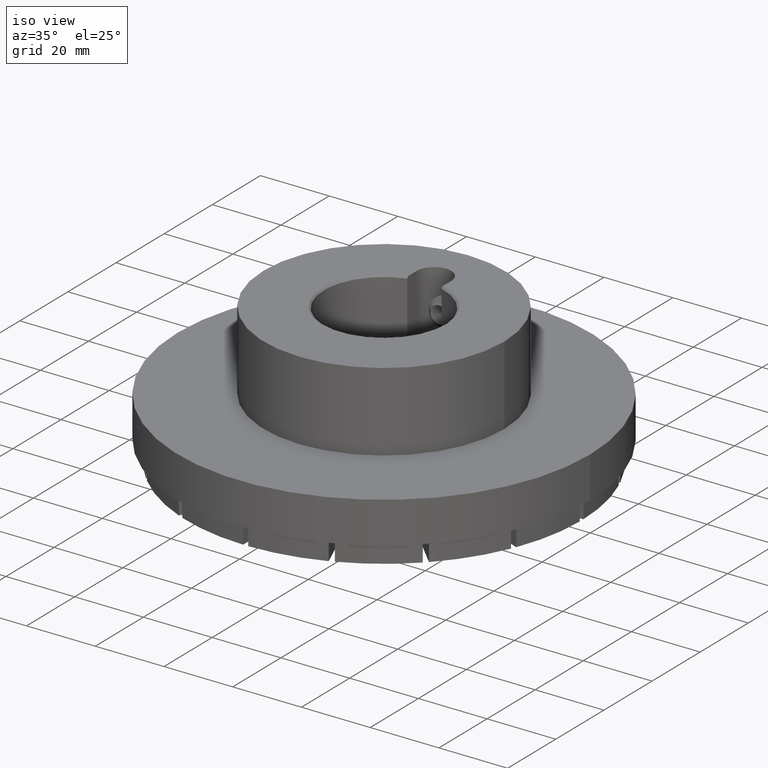
[diagram: clean part render]
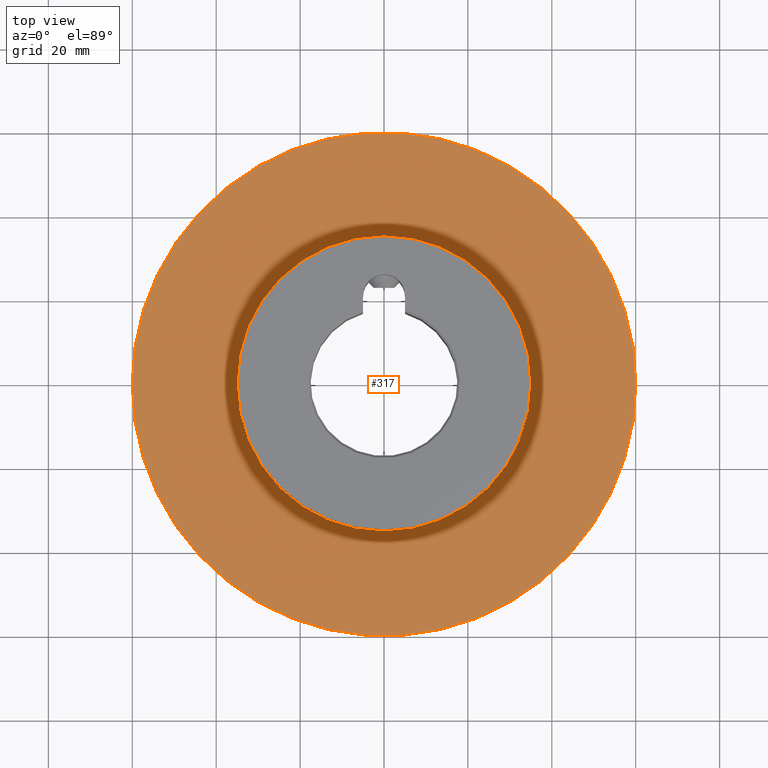
[diagram: tour spotlight — one face highlighted and labeled with its STEP entity id]
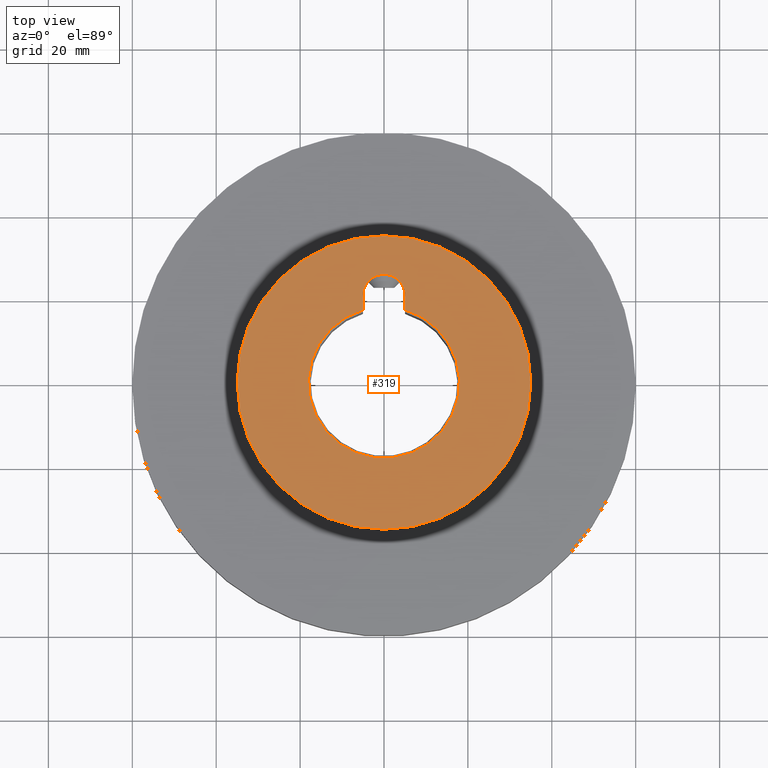
[diagram: tour spotlight — one face highlighted and labeled with its STEP entity id]
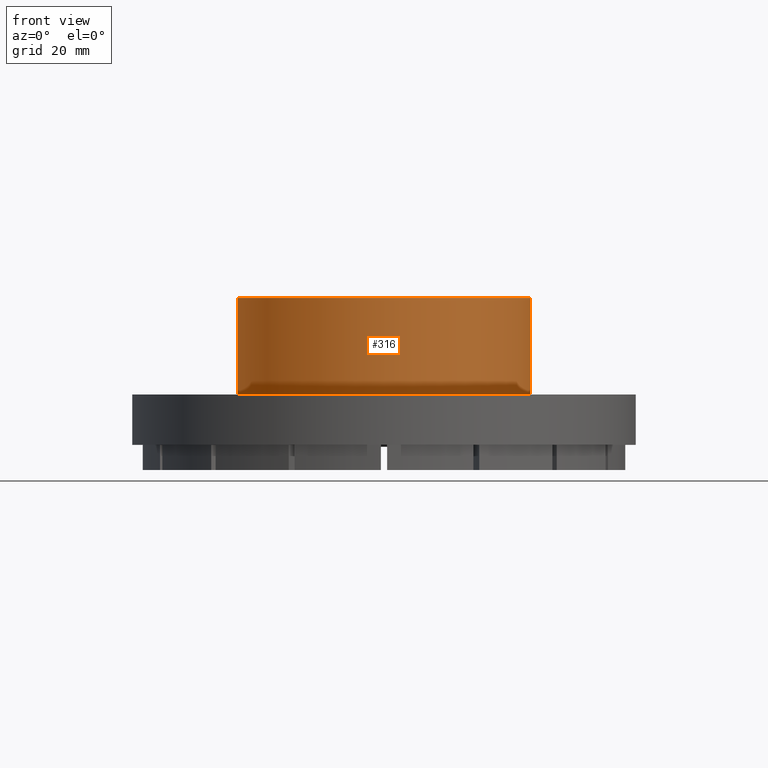
[diagram: tour spotlight — one face highlighted and labeled with its STEP entity id]
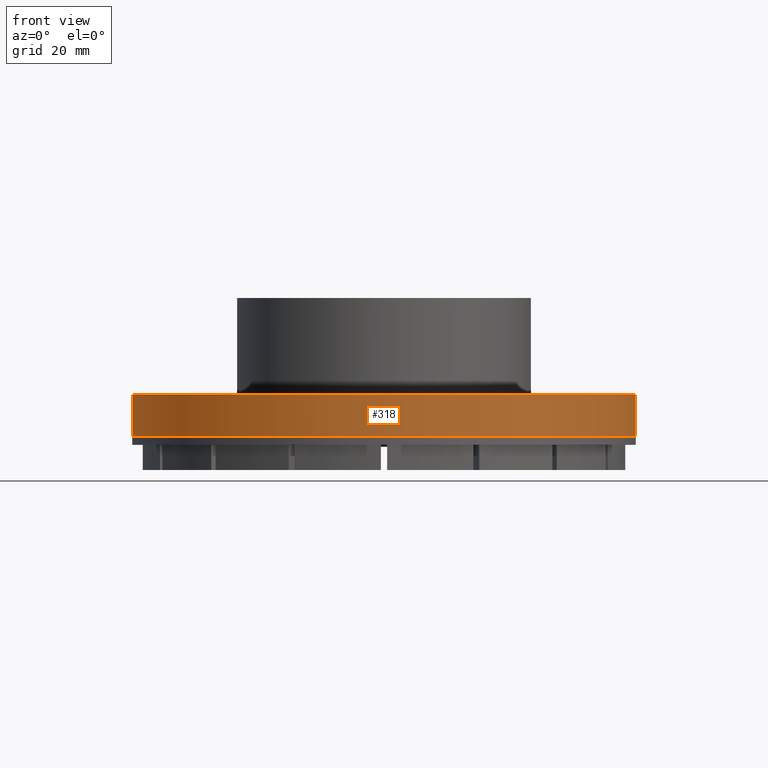
[diagram: tour spotlight — one face highlighted and labeled with its STEP entity id]
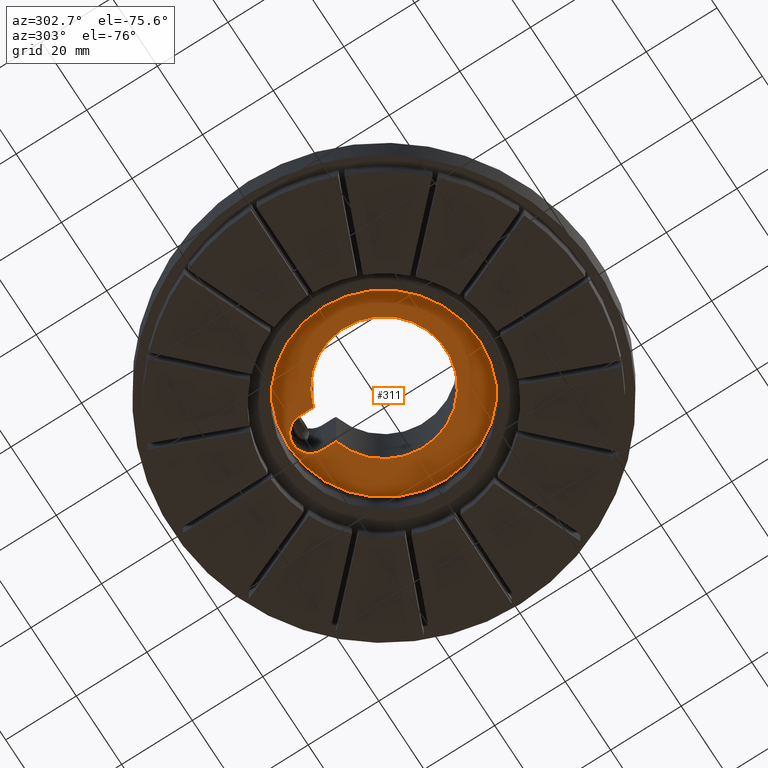
[diagram: tour spotlight — one face highlighted and labeled with its STEP entity id]
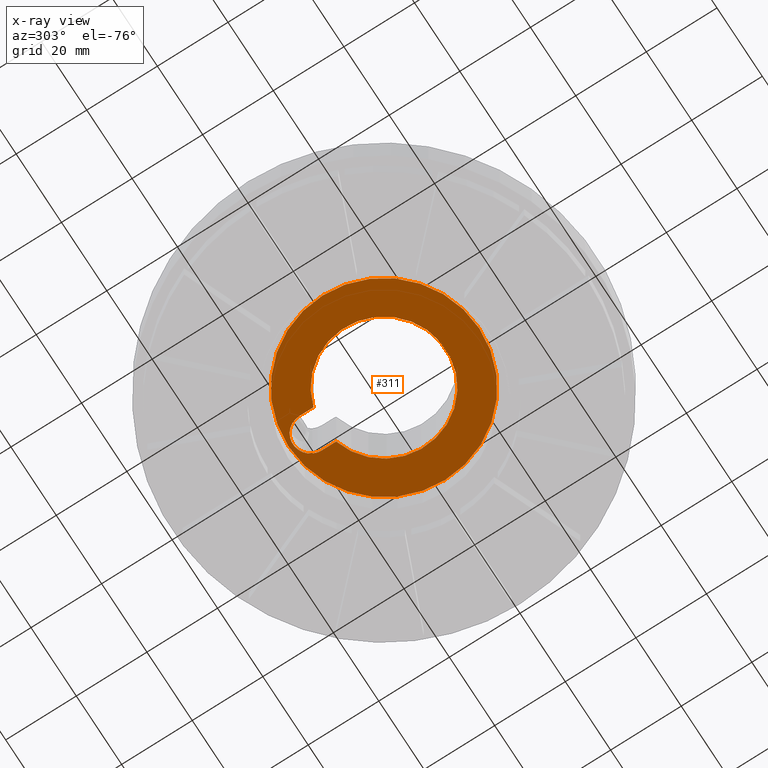
[diagram: x-ray of the same camera — body ghosted, this tour face saturated]
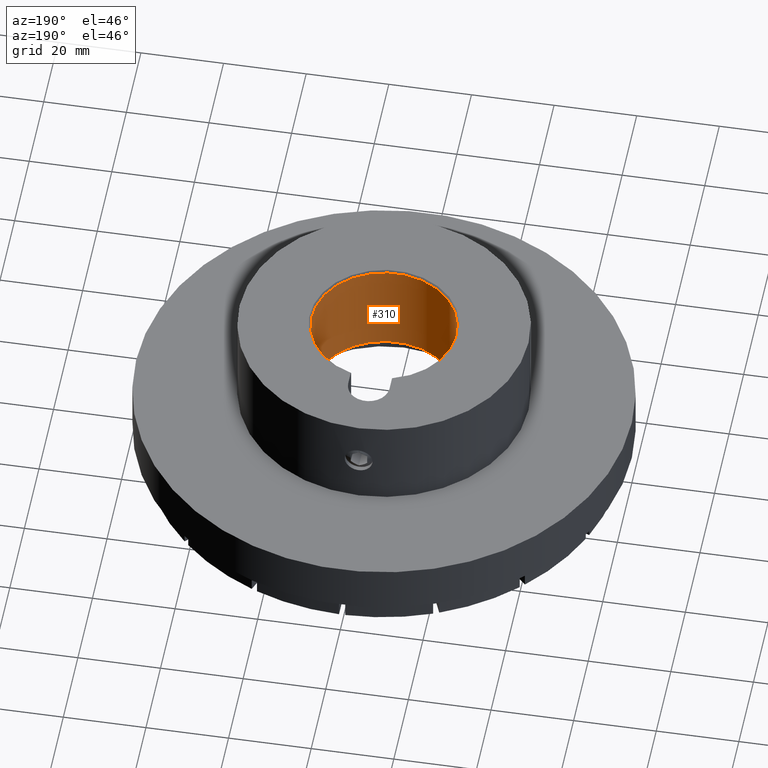
[diagram: tour spotlight — one face highlighted and labeled with its STEP entity id]
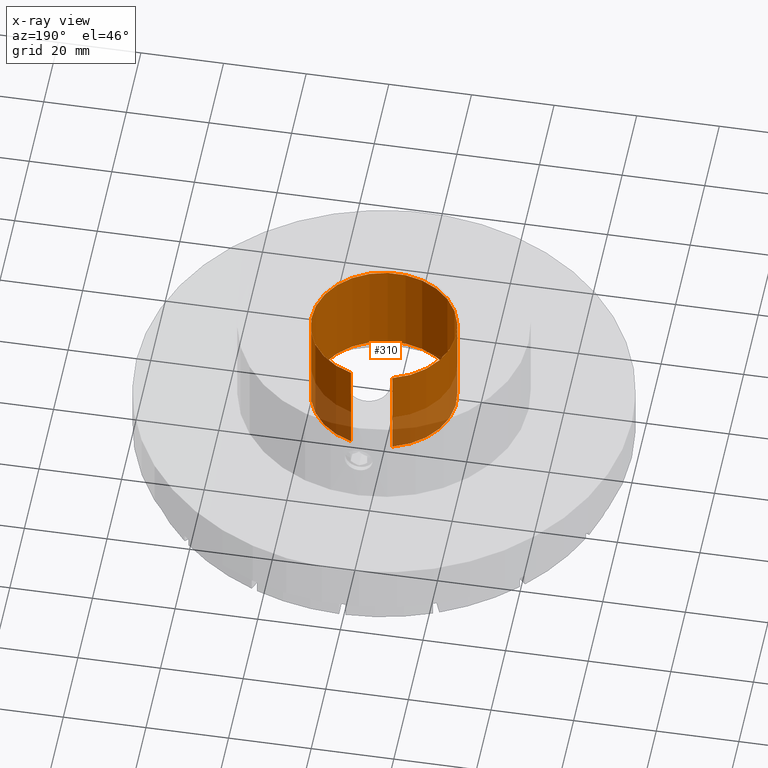
[diagram: x-ray of the same camera — body ghosted, this tour face saturated]
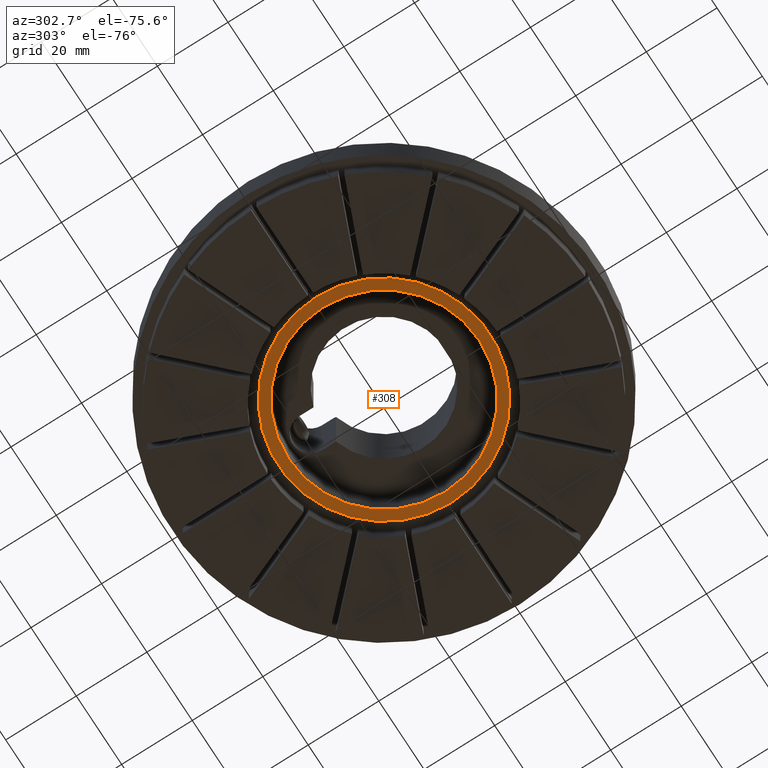
[diagram: tour spotlight — one face highlighted and labeled with its STEP entity id]
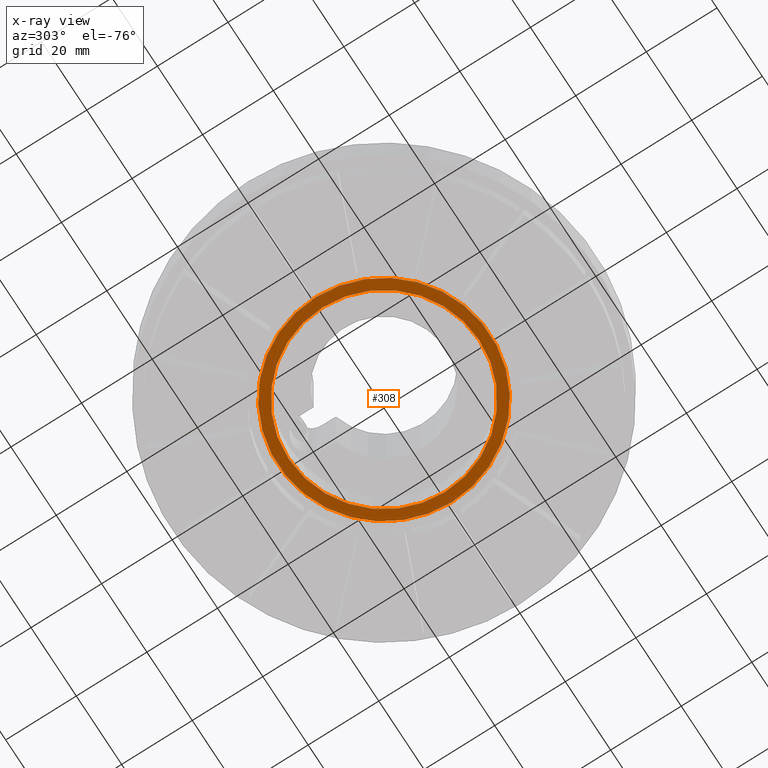
[diagram: x-ray of the same camera — body ghosted, this tour face saturated]
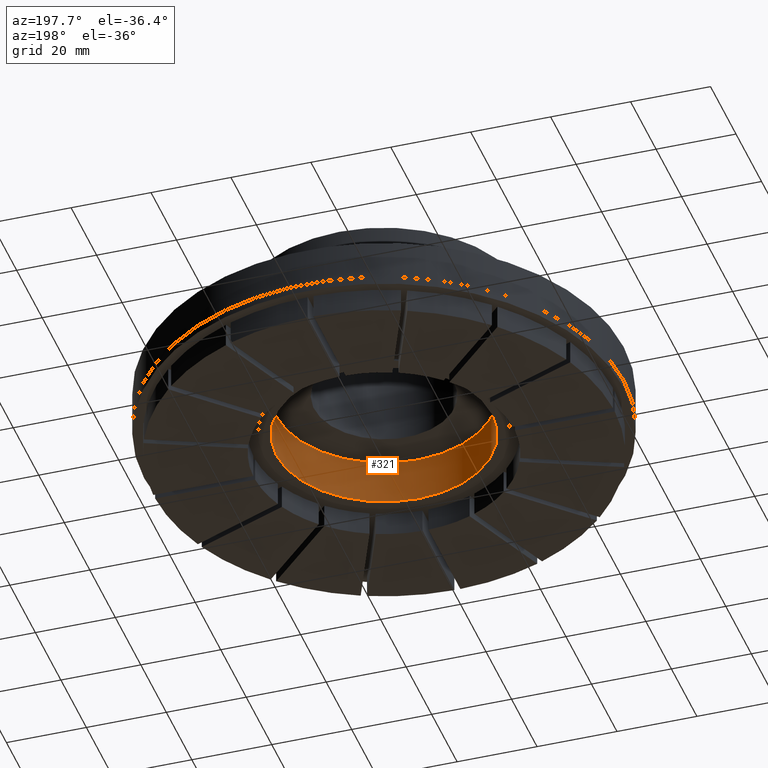
[diagram: tour spotlight — one face highlighted and labeled with its STEP entity id]
A machine part: a face-by-face anatomy tour. The part has 207 B-rep faces; the first image is the clean iso view, then the 8 largest visible faces are spotlighted one at a time (largest first), each with its STEP entity span.

Face 1 — top view, entity #317. In plain terms, the highlighted planar face has unit normal (0, 0, 1).
Definition (entity closure, byte-faithful):
#317 = ADVANCED_FACE( '', ( #485, #486 ), #487, .T. );
#485 = FACE_OUTER_BOUND( '', #737, .T. );
#486 = FACE_BOUND( '', #738, .T. );
#487 = PLANE( '', #739 );
#737 = EDGE_LOOP( '', ( #1023 ) );
#738 = EDGE_LOOP( '', ( #1024 ) );
#739 = AXIS2_PLACEMENT_3D( '', #1025, #1026, #1027 );
#1023 = ORIENTED_EDGE( '', *, *, #1795, .T. );
#1024 = ORIENTED_EDGE( '', *, *, #1794, .F. );
#1025 = CARTESIAN_POINT( '', ( 0.000000000000000, 0.000000000000000, 18.0000000000000 ) );
#1026 = DIRECTION( '', ( 0.000000000000000, 0.000000000000000, 1.00000000000000 ) );
#1027 = DIRECTION( '', ( 1.00000000000000, 0.000000000000000, 0.000000000000000 ) );
#1794 = EDGE_CURVE( '', #2066, #2066, #2067, .T. );
#1795 = EDGE_CURVE( '', #2068, #2068, #2069, .T. );
#2066 = VERTEX_POINT( '', #2638 );
#2067 = CIRCLE( '', #2639, 35.0000000000000 );
#2068 = VERTEX_POINT( '', #2640 );
#2069 = CIRCLE( '', #2641, 60.0000000000000 );
#2638 = CARTESIAN_POINT( '', ( 35.0000000000000, 0.000000000000000, 18.0000000000000 ) );
#2639 = AXIS2_PLACEMENT_3D( '', #3257, #3258, #3259 );
#2640 = CARTESIAN_POINT( '', ( 60.0000000000000, 0.000000000000000, 18.0000000000000 ) );
#2641 = AXIS2_PLACEMENT_3D( '', #3260, #3261, #3262 );
#3257 = CARTESIAN_POINT( '', ( 0.000000000000000, 0.000000000000000, 18.0000000000000 ) );
#3258 = DIRECTION( '', ( 0.000000000000000, 0.000000000000000, 1.00000000000000 ) );
#3259 = DIRECTION( '', ( 1.00000000000000, 0.000000000000000, 0.000000000000000 ) );
#3260 = CARTESIAN_POINT( '', ( 0.000000000000000, 0.000000000000000, 18.0000000000000 ) );
#3261 = DIRECTION( '', ( 0.000000000000000, 0.000000000000000, 1.00000000000000 ) );
#3262 = DIRECTION( '', ( 1.00000000000000, 0.000000000000000, 0.000000000000000 ) );

Face 2 — top view, entity #319. In plain terms, the highlighted planar face has unit normal (0, 0, 1).
Definition (entity closure, byte-faithful):
#319 = ADVANCED_FACE( '', ( #491, #492 ), #493, .T. );
#491 = FACE_OUTER_BOUND( '', #743, .T. );
#492 = FACE_BOUND( '', #744, .T. );
#493 = PLANE( '', #745 );
#743 = EDGE_LOOP( '', ( #1033 ) );
#744 = EDGE_LOOP( '', ( #1034, #1035, #1036, #1037 ) );
#745 = AXIS2_PLACEMENT_3D( '', #1038, #1039, #1040 );
#1033 = ORIENTED_EDGE( '', *, *, #1793, .F. );
#1034 = ORIENTED_EDGE( '', *, *, #1786, .T. );
#1035 = ORIENTED_EDGE( '', *, *, #1778, .T. );
#1036 = ORIENTED_EDGE( '', *, *, #1797, .T. );
#1037 = ORIENTED_EDGE( '', *, *, #1789, .T. );
#1038 = CARTESIAN_POINT( '', ( 0.000000000000000, 0.000000000000000, 41.0000000000000 ) );
#1039 = DIRECTION( '', ( 0.000000000000000, 0.000000000000000, 1.00000000000000 ) );
#1040 = DIRECTION( '', ( 1.00000000000000, 0.000000000000000, 0.000000000000000 ) );
#1778 = EDGE_CURVE( '', #2033, #2037, #2039, .F. );
#1786 = EDGE_CURVE( '', #2052, #2033, #2053, .F. );
#1789 = EDGE_CURVE( '', #2057, #2052, #2058, .T. );
#1793 = EDGE_CURVE( '', #2064, #2064, #2065, .F. );
#1797 = EDGE_CURVE( '', #2037, #2057, #2072, .T. );
#2033 = VERTEX_POINT( '', #2462 );
#2037 = VERTEX_POINT( '', #2469 );
#2039 = CIRCLE( '', #2474, 18.0000000000000 );
#2052 = VERTEX_POINT( '', #2491 );
#2053 = LINE( '', #2492, #2493 );
#2057 = VERTEX_POINT( '', #2563 );
#2058 = CIRCLE( '', #2564, 5.00000000000000 );
#2064 = VERTEX_POINT( '', #2636 );
#2065 = CIRCLE( '', #2637, 35.0000000000000 );
#2072 = LINE( '', #2644, #2645 );
#2462 = CARTESIAN_POINT( '', ( 5.00000000000000, 17.2916164657906, 41.0000000000000 ) );
#2469 = CARTESIAN_POINT( '', ( -5.00000000000000, 17.2916164657906, 41.0000000000000 ) );
#2474 = AXIS2_PLACEMENT_3D( '', #3229, #3230, #3231 );
#2491 = CARTESIAN_POINT( '', ( 5.00000000000000, 20.8000000000000, 41.0000000000000 ) );
#2492 = CARTESIAN_POINT( '', ( 5.00000000000000, 0.000000000000000, 41.0000000000000 ) );
#2493 = VECTOR( '', #3245, 1000.00000000000 );
#2563 = CARTESIAN_POINT( '', ( -5.00000000000000, 20.8000000000000, 41.0000000000000 ) );
#2564 = AXIS2_PLACEMENT_3D( '', #3247, #3248, #3249 );
#2636 = CARTESIAN_POINT( '', ( 35.0000000000000, 0.000000000000000, 41.0000000000000 ) );
#2637 = AXIS2_PLACEMENT_3D( '', #3254, #3255, #3256 );
#2644 = CARTESIAN_POINT( '', ( -5.00000000000000, 0.000000000000000, 41.0000000000000 ) );
#2645 = VECTOR( '', #3266, 1000.00000000000 );
#3229 = CARTESIAN_POINT( '', ( 0.000000000000000, 0.000000000000000, 41.0000000000000 ) );
#3230 = DIRECTION( '', ( 0.000000000000000, 0.000000000000000, 1.00000000000000 ) );
#3231 = DIRECTION( '', ( 1.00000000000000, 0.000000000000000, -0.000000000000000 ) );
#3245 = DIRECTION( '', ( 0.000000000000000, 1.00000000000000, 0.000000000000000 ) );
#3247 = CARTESIAN_POINT( '', ( 8.67361737988404E-016, 20.8000000000000, 41.0000000000000 ) );
#3248 = DIRECTION( '', ( -0.000000000000000, 0.000000000000000, -1.00000000000000 ) );
#3249 = DIRECTION( '', ( -1.00000000000000, 0.000000000000000, 0.000000000000000 ) );
#3254 = CARTESIAN_POINT( '', ( 0.000000000000000, 0.000000000000000, 41.0000000000000 ) );
#3255 = DIRECTION( '', ( 0.000000000000000, 0.000000000000000, 1.00000000000000 ) );
#3256 = DIRECTION( '', ( 1.00000000000000, 0.000000000000000, -0.000000000000000 ) );
#3266 = DIRECTION( '', ( 0.000000000000000, 1.00000000000000, 0.000000000000000 ) );

Face 3 — front view, entity #316. In plain terms, the highlighted cylindrical surface (bore or boss wall) has radius 35 mm, axis along (0, -0, 1).
Definition (entity closure, byte-faithful):
#316 = ADVANCED_FACE( '', ( #481, #482, #483 ), #484, .T. );
#481 = FACE_BOUND( '', #733, .T. );
#482 = FACE_OUTER_BOUND( '', #734, .T. );
#483 = FACE_OUTER_BOUND( '', #735, .T. );
#484 = CYLINDRICAL_SURFACE( '', #736, 35.0000000000000 );
#733 = EDGE_LOOP( '', ( #1017 ) );
#734 = EDGE_LOOP( '', ( #1018 ) );
#735 = EDGE_LOOP( '', ( #1019 ) );
#736 = AXIS2_PLACEMENT_3D( '', #1020, #1021, #1022 );
#1017 = ORIENTED_EDGE( '', *, *, #1791, .T. );
#1018 = ORIENTED_EDGE( '', *, *, #1793, .T. );
#1019 = ORIENTED_EDGE( '', *, *, #1794, .T. );
#1020 = CARTESIAN_POINT( '', ( 0.000000000000000, 0.000000000000000, 63.9999999998799 ) );
#1021 = DIRECTION( '', ( 0.000000000000000, -0.000000000000000, 1.00000000000000 ) );
#1022 = DIRECTION( '', ( -1.00000000000000, 0.000000000000000, 0.000000000000000 ) );
#1791 = EDGE_CURVE( '', #2060, #2060, #2061, .T. );
#1793 = EDGE_CURVE( '', #2064, #2064, #2065, .F. );
#1794 = EDGE_CURVE( '', #2066, #2066, #2067, .T. );
#2060 = VERTEX_POINT( '', #2567 );
#2061 = B_SPLINE_CURVE_WITH_KNOTS( '', 3, ( #2568, #2569, #2570, #2571, #2572, #2573, #2574, #2575, #2576, #2577, #2578, #2579, #2580, #2581, #2582, #2583, #2584, #2585, #2586, #2587, #2588, #2589, #2590, #2591, #2592, #2593, #2594, #2595, #2596, #2597, #2598, #2599, #2600, #2601, #2602, #2603, #2604, #2605, #2606, #2607, #2608, #2609, #2610, #2611, #2612, #2613, #2614, #2615, #2616, #2617, #2618, #2619, #2620, #2621, #2622, #2623, #2624, #2625, #2626, #2627, #2628, #2629, #2630, #2631, #2632, #2633 ), .UNSPECIFIED., .T., .F., ( 2, 2, 2, 2, 2, 2, 2, 2, 2, 2, 2, 2, 2, 2, 2, 2, 2, 2, 2, 2, 2, 2, 2, 2, 2, 2, 2, 2, 2, 2, 2, 2, 2, 2, 2 ), ( -0.000659792616552269, 0.000000000000000, 0.000659792616552259, 0.00131958523310452, 0.00197937784965678, 0.00263917046620904, 0.00329896308276130, 0.00395875569931356, 0.00461854831586581, 0.00527834093241807, 0.00593813354897033, 0.00659792616552259, 0.00725771878207485, 0.00791751139862711, 0.00857730401517936, 0.00923709663173162, 0.00989688924828388, 0.0105566818648361, 0.0112164744813884, 0.0118762670979407, 0.0125360597144929, 0.0131958523310452, 0.0138556449475974, 0.0145154375641497, 0.0151752301807020, 0.0158350227972542, 0.0164948154138065, 0.0171546080303587, 0.0178144006469110, 0.0184741932634632, 0.0191339858800155, 0.0197937784965678, 0.0204535711131200, 0.0211133637296723, 0.0217731563462246 ), .UNSPECIFIED. );
#2064 = VERTEX_POINT( '', #2636 );
#2065 = CIRCLE( '', #2637, 35.0000000000000 );
#2066 = VERTEX_POINT( '', #2638 );
#2067 = CIRCLE( '', #2639, 35.0000000000000 );
#2567 = CARTESIAN_POINT( '', ( -3.37499999999999, 34.8368967475578, 30.0000000000000 ) );
#2568 = CARTESIAN_POINT( '', ( -3.37500000000000, 34.8368967475578, 30.2231075778189 ) );
#2569 = CARTESIAN_POINT( '', ( -3.37499999999999, 34.8368967475578, 29.7768924221811 ) );
#2570 = CARTESIAN_POINT( '', ( -3.35309482005750, 34.8390386253832, 29.5575391813107 ) );
#2571 = CARTESIAN_POINT( '', ( -3.26729037165633, 34.8471902861697, 29.1260262729043 ) );
#2572 = CARTESIAN_POINT( '', ( -3.20234035521308, 34.8532961379768, 28.9116210447646 ) );
#2573 = CARTESIAN_POINT( '', ( -3.03289391610257, 34.8684497780702, 28.5029672700660 ) );
#2574 = CARTESIAN_POINT( '', ( -2.92922168469202, 34.8774246876785, 28.3091684881645 ) );
#2575 = CARTESIAN_POINT( '', ( -2.68430975562521, 34.8971284443092, 27.9423965359329 ) );
#2576 = CARTESIAN_POINT( '', ( -2.54184220013261, 34.9079269093976, 27.7688403892723 ) );
#2577 = CARTESIAN_POINT( '', ( -2.23065208452513, 34.9291928644225, 27.4577123969304 ) );
#2578 = CARTESIAN_POINT( '', ( -2.06082996922177, 34.9397638068734, 27.3180528237218 ) );
#2579 = CARTESIAN_POINT( '', ( -1.69195606165627, 34.9595680712387, 27.0713235918228 ) );
#2580 = CARTESIAN_POINT( '', ( -1.49570529703996, 34.9686165110756, 26.9665537992799 ) );
#2581 = CARTESIAN_POINT( '', ( -1.08965736439224, 34.9836236239542, 26.7981916021594 ) );
#2582 = CARTESIAN_POINT( '', ( -0.876857096712151, 34.9896927521285, 26.7333368275473 ) );
#2583 = CARTESIAN_POINT( '', ( -0.441148823417440, 34.9978980079091, 26.6465906355009 ) );
#2584 = CARTESIAN_POINT( '', ( -0.222084772996683, 34.9999883682872, 26.6251206251879 ) );
#2585 = CARTESIAN_POINT( '', ( 0.218403258621768, 35.0000115349018, 26.6248803787787 ) );
#2586 = CARTESIAN_POINT( '', ( 0.442132172794369, 34.9978770307977, 26.6468134258806 ) );
#2587 = CARTESIAN_POINT( '', ( 0.875079846935608, 34.9897286754634, 26.7329560271460 ) );
#2588 = CARTESIAN_POINT( '', ( 1.08552342669229, 34.9837600678683, 26.7966919714591 ) );
#2589 = CARTESIAN_POINT( '', ( 1.49429123789140, 34.9686848950949, 26.9657559208308 ) );
#2590 = CARTESIAN_POINT( '', ( 1.69177335780927, 34.9595682886960, 27.0713737356426 ) );
#2591 = CARTESIAN_POINT( '', ( 2.05737365236231, 34.9399588677599, 27.3155703501409 ) );
#2592 = CARTESIAN_POINT( '', ( 2.22782483512440, 34.9293824012412, 27.4549925341507 ) );
#2593 = CARTESIAN_POINT( '', ( 2.54305486031388, 34.9078476908212, 27.7699465309863 ) );
#2594 = CARTESIAN_POINT( '', ( 2.68266263604761, 34.8972543207386, 27.9403270975097 ) );
#2595 = CARTESIAN_POINT( '', ( 2.92713239146941, 34.8775993140004, 28.3056484287760 ) );
#2596 = CARTESIAN_POINT( '', ( 3.03288143797927, 34.8684508987573, 28.5029363076016 ) );
#2597 = CARTESIAN_POINT( '', ( 3.20235672309147, 34.8532946694277, 28.9116613881666 ) );
#2598 = CARTESIAN_POINT( '', ( 3.26626003815469, 34.8472873071483, 29.1220265704258 ) );
#2599 = CARTESIAN_POINT( '', ( 3.35275695635908, 34.8390715733840, 29.5546767786535 ) );
#2600 = CARTESIAN_POINT( '', ( 3.37491900804040, 34.8369045940616, 29.7784505373555 ) );
#2601 = CARTESIAN_POINT( '', ( 3.37508053838903, 34.8368889449958, 30.2190749520553 ) );
#2602 = CARTESIAN_POINT( '', ( 3.35379662800960, 34.8389713701302, 30.4381250115396 ) );
#2603 = CARTESIAN_POINT( '', ( 3.26751457395931, 34.8471695616698, 30.8736440103089 ) );
#2604 = CARTESIAN_POINT( '', ( 3.20278503583688, 34.8532535573975, 31.0867919527803 ) );
#2605 = CARTESIAN_POINT( '', ( 3.03474904481731, 34.8682866478553, 31.4930662977206 ) );
#2606 = CARTESIAN_POINT( '', ( 2.93021663308670, 34.8773438890617, 31.6892963626435 ) );
#2607 = CARTESIAN_POINT( '', ( 2.68373781157996, 34.8971752099132, 32.0585050586177 ) );
#2608 = CARTESIAN_POINT( '', ( 2.54420393696395, 34.9077540778229, 32.2284648032243 ) );
#2609 = CARTESIAN_POINT( '', ( 2.23336389098855, 34.9290187975708, 32.5399044829483 ) );
#2610 = CARTESIAN_POINT( '', ( 2.05994692344707, 34.9398098464841, 32.6825131898001 ) );
#2611 = CARTESIAN_POINT( '', ( 1.69335958832771, 34.9594940858775, 32.9277622248894 ) );
#2612 = CARTESIAN_POINT( '', ( 1.49967953598152, 34.9684529556979, 33.0315793219008 ) );
#2613 = CARTESIAN_POINT( '', ( 1.09134811689329, 34.9835775773898, 33.2013233487687 ) );
#2614 = CARTESIAN_POINT( '', ( 0.876880537483749, 34.9896789693885, 33.2665118940280 ) );
#2615 = CARTESIAN_POINT( '', ( 0.445430676236363, 34.9978305809168, 33.3527020361959 ) );
#2616 = CARTESIAN_POINT( '', ( 0.226170702548231, 34.9999792801650, 33.3747851275398 ) );
#2617 = CARTESIAN_POINT( '', ( -0.219711785319080, 35.0000204218521, 33.3752117822660 ) );
#2618 = CARTESIAN_POINT( '', ( -0.439481475500328, 34.9979061231268, 33.3534855773897 ) );
#2619 = CARTESIAN_POINT( '', ( -0.871039791930529, 34.9898251874938, 33.2680726989989 ) );
#2620 = CARTESIAN_POINT( '', ( -1.08535367762122, 34.9837660210303, 33.2033742079948 ) );
#2621 = CARTESIAN_POINT( '', ( -1.49435609279175, 34.9686828103040, 33.0342212822911 ) );
#2622 = CARTESIAN_POINT( '', ( -1.68825946747623, 34.9597415393957, 32.9307002585483 ) );
#2623 = CARTESIAN_POINT( '', ( -2.05514918505344, 34.9400931647019, 32.6861842569252 ) );
#2624 = CARTESIAN_POINT( '', ( -2.22887160293069, 34.9293071463052, 32.5438527093568 ) );
#2625 = CARTESIAN_POINT( '', ( -2.54034061758471, 34.9080368380968, 32.2328736587416 ) );
#2626 = CARTESIAN_POINT( '', ( -2.68012133212368, 34.8974539623524, 32.0631917586234 ) );
#2627 = CARTESIAN_POINT( '', ( -2.92706229262030, 34.8776095761239, 31.6947321094722 ) );
#2628 = CARTESIAN_POINT( '', ( -3.03212594980696, 34.8685156810234, 31.4983801084129 ) );
#2629 = CARTESIAN_POINT( '', ( -3.20084698757719, 34.8534324297533, 31.0924785063781 ) );
#2630 = CARTESIAN_POINT( '', ( -3.26578571620345, 34.8473322716986, 30.8802266031362 ) );
#2631 = CARTESIAN_POINT( '', ( -3.35309223636345, 34.8390398153101, 30.4437653337817 ) );
#2632 = CARTESIAN_POINT( '', ( -3.37500000000000, 34.8368967475578, 30.2231075778189 ) );
#2633 = CARTESIAN_POINT( '', ( -3.37499999999999, 34.8368967475578, 29.7768924221811 ) );
#2636 = CARTESIAN_POINT( '', ( 35.0000000000000, 0.000000000000000, 41.0000000000000 ) );
#2637 = AXIS2_PLACEMENT_3D( '', #3254, #3255, #3256 );
#2638 = CARTESIAN_POINT( '', ( 35.0000000000000, 0.000000000000000, 18.0000000000000 ) );
#2639 = AXIS2_PLACEMENT_3D( '', #3257, #3258, #3259 );
#3254 = CARTESIAN_POINT( '', ( 0.000000000000000, 0.000000000000000, 41.0000000000000 ) );
#3255 = DIRECTION( '', ( 0.000000000000000, 0.000000000000000, 1.00000000000000 ) );
#3256 = DIRECTION( '', ( 1.00000000000000, 0.000000000000000, -0.000000000000000 ) );
#3257 = CARTESIAN_POINT( '', ( 0.000000000000000, 0.000000000000000, 18.0000000000000 ) );
#3258 = DIRECTION( '', ( 0.000000000000000, 0.000000000000000, 1.00000000000000 ) );
#3259 = DIRECTION( '', ( 1.00000000000000, 0.000000000000000, 0.000000000000000 ) );

Face 4 — front view, entity #318. In plain terms, the highlighted cylindrical surface (bore or boss wall) has radius 60 mm, axis along (0, -0, 1).
Definition (entity closure, byte-faithful):
#318 = ADVANCED_FACE( '', ( #488, #489 ), #490, .T. );
#488 = FACE_OUTER_BOUND( '', #740, .T. );
#489 = FACE_OUTER_BOUND( '', #741, .T. );
#490 = CYLINDRICAL_SURFACE( '', #742, 60.0000000000000 );
#740 = EDGE_LOOP( '', ( #1028 ) );
#741 = EDGE_LOOP( '', ( #1029 ) );
#742 = AXIS2_PLACEMENT_3D( '', #1030, #1031, #1032 );
#1028 = ORIENTED_EDGE( '', *, *, #1796, .T. );
#1029 = ORIENTED_EDGE( '', *, *, #1795, .F. );
#1030 = CARTESIAN_POINT( '', ( 0.000000000000000, 0.000000000000000, 41.0000000000000 ) );
#1031 = DIRECTION( '', ( 0.000000000000000, -0.000000000000000, 1.00000000000000 ) );
#1032 = DIRECTION( '', ( -1.00000000000000, 0.000000000000000, 0.000000000000000 ) );
#1795 = EDGE_CURVE( '', #2068, #2068, #2069, .T. );
#1796 = EDGE_CURVE( '', #2070, #2070, #2071, .T. );
#2068 = VERTEX_POINT( '', #2640 );
#2069 = CIRCLE( '', #2641, 60.0000000000000 );
#2070 = VERTEX_POINT( '', #2642 );
#2071 = CIRCLE( '', #2643, 60.0000000000000 );
#2640 = CARTESIAN_POINT( '', ( 60.0000000000000, 0.000000000000000, 18.0000000000000 ) );
#2641 = AXIS2_PLACEMENT_3D( '', #3260, #3261, #3262 );
#2642 = CARTESIAN_POINT( '', ( 60.0000000000000, 0.000000000000000, 8.00000000000000 ) );
#2643 = AXIS2_PLACEMENT_3D( '', #3263, #3264, #3265 );
#3260 = CARTESIAN_POINT( '', ( 0.000000000000000, 0.000000000000000, 18.0000000000000 ) );
#3261 = DIRECTION( '', ( 0.000000000000000, 0.000000000000000, 1.00000000000000 ) );
#3262 = DIRECTION( '', ( 1.00000000000000, 0.000000000000000, 0.000000000000000 ) );
#3263 = CARTESIAN_POINT( '', ( 0.000000000000000, 0.000000000000000, 8.00000000000000 ) );
#3264 = DIRECTION( '', ( 0.000000000000000, 0.000000000000000, 1.00000000000000 ) );
#3265 = DIRECTION( '', ( 1.00000000000000, 0.000000000000000, 0.000000000000000 ) );

Face 5 — auxiliary view, entity #311. An x-ray twin of the same camera follows (body ghosted, this face saturated) — the face is partly hidden behind the body. In plain terms, the highlighted planar face has unit normal (0, 0, 1).
Definition (entity closure, byte-faithful):
#311 = ADVANCED_FACE( '', ( #467, #468 ), #469, .F. );
#467 = FACE_BOUND( '', #719, .T. );
#468 = FACE_OUTER_BOUND( '', #720, .T. );
#469 = PLANE( '', #721 );
#719 = EDGE_LOOP( '', ( #983, #984, #985, #986 ) );
#720 = EDGE_LOOP( '', ( #987 ) );
#721 = AXIS2_PLACEMENT_3D( '', #988, #989, #990 );
#983 = ORIENTED_EDGE( '', *, *, #1782, .T. );
#984 = ORIENTED_EDGE( '', *, *, #1783, .T. );
#985 = ORIENTED_EDGE( '', *, *, #1784, .T. );
#986 = ORIENTED_EDGE( '', *, *, #1781, .T. );
#987 = ORIENTED_EDGE( '', *, *, #1785, .F. );
#988 = CARTESIAN_POINT( '', ( 0.000000000000000, 0.000000000000000, 17.0000000000000 ) );
#989 = DIRECTION( '', ( 0.000000000000000, 0.000000000000000, 1.00000000000000 ) );
#990 = DIRECTION( '', ( 1.00000000000000, 0.000000000000000, 0.000000000000000 ) );
#1781 = EDGE_CURVE( '', #2040, #2042, #2044, .T. );
#1782 = EDGE_CURVE( '', #2042, #2045, #2046, .T. );
#1783 = EDGE_CURVE( '', #2045, #2047, #2048, .T. );
#1784 = EDGE_CURVE( '', #2047, #2040, #2049, .T. );
#1785 = EDGE_CURVE( '', #2050, #2050, #2051, .T. );
#2040 = VERTEX_POINT( '', #2475 );
#2042 = VERTEX_POINT( '', #2478 );
#2044 = CIRCLE( '', #2481, 17.5000000000000 );
#2045 = VERTEX_POINT( '', #2482 );
#2046 = LINE( '', #2483, #2484 );
#2047 = VERTEX_POINT( '', #2485 );
#2048 = CIRCLE( '', #2486, 5.00000000000000 );
#2049 = LINE( '', #2487, #2488 );
#2050 = VERTEX_POINT( '', #2489 );
#2051 = CIRCLE( '', #2490, 27.0000000000000 );
#2475 = CARTESIAN_POINT( '', ( -5.00000000000000, 16.7705098312484, 17.0000000000000 ) );
#2478 = CARTESIAN_POINT( '', ( 5.00000000000000, 16.7705098312484, 17.0000000000000 ) );
#2481 = AXIS2_PLACEMENT_3D( '', #3234, #3235, #3236 );
#2482 = CARTESIAN_POINT( '', ( 5.00000000000000, 20.8000000000000, 17.0000000000000 ) );
#2483 = CARTESIAN_POINT( '', ( 5.00000000000000, 16.7705098312484, 17.0000000000000 ) );
#2484 = VECTOR( '', #3237, 1000.00000000000 );
#2485 = CARTESIAN_POINT( '', ( -5.00000000000000, 20.8000000000000, 17.0000000000000 ) );
#2486 = AXIS2_PLACEMENT_3D( '', #3238, #3239, #3240 );
#2487 = CARTESIAN_POINT( '', ( -5.00000000000000, 20.8000000000000, 17.0000000000000 ) );
#2488 = VECTOR( '', #3241, 1000.00000000000 );
#2489 = CARTESIAN_POINT( '', ( 27.0000000000000, 0.000000000000000, 17.0000000000000 ) );
#2490 = AXIS2_PLACEMENT_3D( '', #3242, #3243, #3244 );
#3234 = CARTESIAN_POINT( '', ( 0.000000000000000, 0.000000000000000, 17.0000000000000 ) );
#3235 = DIRECTION( '', ( 0.000000000000000, 0.000000000000000, 1.00000000000000 ) );
#3236 = DIRECTION( '', ( 1.00000000000000, 0.000000000000000, -0.000000000000000 ) );
#3237 = DIRECTION( '', ( 6.12303176911189E-017, 1.00000000000000, -0.000000000000000 ) );
#3238 = CARTESIAN_POINT( '', ( 8.67361737988404E-016, 20.8000000000000, 17.0000000000000 ) );
#3239 = DIRECTION( '', ( 0.000000000000000, 0.000000000000000, 1.00000000000000 ) );
#3240 = DIRECTION( '', ( 1.00000000000000, 0.000000000000000, -0.000000000000000 ) );
#3241 = DIRECTION( '', ( -6.12303176911189E-017, -1.00000000000000, 0.000000000000000 ) );
#3242 = CARTESIAN_POINT( '', ( 0.000000000000000, 0.000000000000000, 17.0000000000000 ) );
#3243 = DIRECTION( '', ( 0.000000000000000, 0.000000000000000, 1.00000000000000 ) );
#3244 = DIRECTION( '', ( 1.00000000000000, 0.000000000000000, 0.000000000000000 ) );

Face 6 — auxiliary view, entity #310. An x-ray twin of the same camera follows (body ghosted, this face saturated) — the face is partly hidden behind the body. In plain terms, the highlighted cylindrical surface (partial cylindrical patch) has radius 17.5 mm, axis along (0, -0, 1).
Definition (entity closure, byte-faithful):
#310 = ADVANCED_FACE( '', ( #465 ), #466, .F. );
#465 = FACE_OUTER_BOUND( '', #717, .T. );
#466 = CYLINDRICAL_SURFACE( '', #718, 17.5000000000000 );
#717 = EDGE_LOOP( '', ( #976, #977, #978, #979 ) );
#718 = AXIS2_PLACEMENT_3D( '', #980, #981, #982 );
#976 = ORIENTED_EDGE( '', *, *, #1779, .F. );
#977 = ORIENTED_EDGE( '', *, *, #1776, .T. );
#978 = ORIENTED_EDGE( '', *, *, #1780, .T. );
#979 = ORIENTED_EDGE( '', *, *, #1781, .F. );
#980 = CARTESIAN_POINT( '', ( 0.000000000000000, 0.000000000000000, 41.0000100000000 ) );
#981 = DIRECTION( '', ( 0.000000000000000, -0.000000000000000, 1.00000000000000 ) );
#982 = DIRECTION( '', ( -1.00000000000000, 0.000000000000000, 0.000000000000000 ) );
#1776 = EDGE_CURVE( '', #2035, #2032, #2036, .T. );
#1779 = EDGE_CURVE( '', #2035, #2040, #2041, .T. );
#1780 = EDGE_CURVE( '', #2032, #2042, #2043, .T. );
#1781 = EDGE_CURVE( '', #2040, #2042, #2044, .T. );
#2032 = VERTEX_POINT( '', #2461 );
#2035 = VERTEX_POINT( '', #2467 );
#2036 = CIRCLE( '', #2468, 17.5000000000000 );
#2040 = VERTEX_POINT( '', #2475 );
#2041 = LINE( '', #2476, #2477 );
#2042 = VERTEX_POINT( '', #2478 );
#2043 = LINE( '', #2479, #2480 );
#2044 = CIRCLE( '', #2481, 17.5000000000000 );
#2461 = CARTESIAN_POINT( '', ( 5.00000000000001, 16.7705098312484, 40.5000000000000 ) );
#2467 = CARTESIAN_POINT( '', ( -5.00000000000000, 16.7705098312484, 40.5000000000000 ) );
#2468 = AXIS2_PLACEMENT_3D( '', #3226, #3227, #3228 );
#2475 = CARTESIAN_POINT( '', ( -5.00000000000000, 16.7705098312484, 17.0000000000000 ) );
#2476 = CARTESIAN_POINT( '', ( -5.00000000000000, 16.7705098312484, 41.0000100000000 ) );
#2477 = VECTOR( '', #3232, 1000.00000000000 );
#2478 = CARTESIAN_POINT( '', ( 5.00000000000000, 16.7705098312484, 17.0000000000000 ) );
#2479 = CARTESIAN_POINT( '', ( 5.00000000000001, 16.7705098312484, 41.0000100000000 ) );
#2480 = VECTOR( '', #3233, 1000.00000000000 );
#2481 = AXIS2_PLACEMENT_3D( '', #3234, #3235, #3236 );
#3226 = CARTESIAN_POINT( '', ( 0.000000000000000, 0.000000000000000, 40.5000000000000 ) );
#3227 = DIRECTION( '', ( 0.000000000000000, -0.000000000000000, 1.00000000000000 ) );
#3228 = DIRECTION( '', ( 1.00000000000000, 0.000000000000000, 0.000000000000000 ) );
#3232 = DIRECTION( '', ( -0.000000000000000, -0.000000000000000, -1.00000000000000 ) );
#3233 = DIRECTION( '', ( -0.000000000000000, -0.000000000000000, -1.00000000000000 ) );
#3234 = CARTESIAN_POINT( '', ( 0.000000000000000, 0.000000000000000, 17.0000000000000 ) );
#3235 = DIRECTION( '', ( 0.000000000000000, 0.000000000000000, 1.00000000000000 ) );
#3236 = DIRECTION( '', ( 1.00000000000000, 0.000000000000000, -0.000000000000000 ) );

Face 7 — auxiliary view, entity #308. An x-ray twin of the same camera follows (body ghosted, this face saturated) — the face is partly hidden behind the body. In plain terms, the highlighted planar face has unit normal (0, 0, 1).
Definition (entity closure, byte-faithful):
#308 = ADVANCED_FACE( '', ( #460, #461 ), #462, .F. );
#460 = FACE_BOUND( '', #712, .T. );
#461 = FACE_OUTER_BOUND( '', #713, .T. );
#462 = PLANE( '', #714 );
#712 = EDGE_LOOP( '', ( #964 ) );
#713 = EDGE_LOOP( '', ( #965 ) );
#714 = AXIS2_PLACEMENT_3D( '', #966, #967, #968 );
#964 = ORIENTED_EDGE( '', *, *, #1773, .T. );
#965 = ORIENTED_EDGE( '', *, *, #1774, .F. );
#966 = CARTESIAN_POINT( '', ( 0.000000000000000, 0.000000000000000, 5.50000000000000 ) );
#967 = DIRECTION( '', ( 0.000000000000000, 0.000000000000000, 1.00000000000000 ) );
#968 = DIRECTION( '', ( 1.00000000000000, 0.000000000000000, 0.000000000000000 ) );
#1773 = EDGE_CURVE( '', #2028, #2028, #2029, .T. );
#1774 = EDGE_CURVE( '', #2030, #2030, #2031, .T. );
#2028 = VERTEX_POINT( '', #2457 );
#2029 = CIRCLE( '', #2458, 27.0000000000000 );
#2030 = VERTEX_POINT( '', #2459 );
#2031 = CIRCLE( '', #2460, 30.0000000000000 );
#2457 = CARTESIAN_POINT( '', ( 27.0000000000000, 0.000000000000000, 5.50000000000000 ) );
#2458 = AXIS2_PLACEMENT_3D( '', #3220, #3221, #3222 );
#2459 = CARTESIAN_POINT( '', ( 30.0000000000000, 0.000000000000000, 5.50000000000000 ) );
#2460 = AXIS2_PLACEMENT_3D( '', #3223, #3224, #3225 );
#3220 = CARTESIAN_POINT( '', ( 0.000000000000000, 0.000000000000000, 5.50000000000000 ) );
#3221 = DIRECTION( '', ( 0.000000000000000, 0.000000000000000, 1.00000000000000 ) );
#3222 = DIRECTION( '', ( 1.00000000000000, 0.000000000000000, -0.000000000000000 ) );
#3223 = CARTESIAN_POINT( '', ( 0.000000000000000, 0.000000000000000, 5.50000000000000 ) );
#3224 = DIRECTION( '', ( 0.000000000000000, 0.000000000000000, 1.00000000000000 ) );
#3225 = DIRECTION( '', ( 1.00000000000000, 0.000000000000000, -0.000000000000000 ) );

Face 8 — auxiliary view, entity #321. In plain terms, the highlighted cylindrical surface (bore or boss wall) has radius 27 mm, axis along (-0, 0, -1).
Definition (entity closure, byte-faithful):
#321 = ADVANCED_FACE( '', ( #496, #497 ), #498, .F. );
#496 = FACE_OUTER_BOUND( '', #748, .T. );
#497 = FACE_OUTER_BOUND( '', #749, .T. );
#498 = CYLINDRICAL_SURFACE( '', #750, 27.0000000000000 );
#748 = EDGE_LOOP( '', ( #1049 ) );
#749 = EDGE_LOOP( '', ( #1050 ) );
#750 = AXIS2_PLACEMENT_3D( '', #1051, #1052, #1053 );
#1049 = ORIENTED_EDGE( '', *, *, #1785, .T. );
#1050 = ORIENTED_EDGE( '', *, *, #1773, .F. );
#1051 = CARTESIAN_POINT( '', ( 0.000000000000000, 0.000000000000000, -6.00000000003274 ) );
#1052 = DIRECTION( '', ( -0.000000000000000, 0.000000000000000, -1.00000000000000 ) );
#1053 = DIRECTION( '', ( 1.00000000000000, 0.000000000000000, 0.000000000000000 ) );
#1773 = EDGE_CURVE( '', #2028, #2028, #2029, .T. );
#1785 = EDGE_CURVE( '', #2050, #2050, #2051, .T. );
#2028 = VERTEX_POINT( '', #2457 );
#2029 = CIRCLE( '', #2458, 27.0000000000000 );
#2050 = VERTEX_POINT( '', #2489 );
#2051 = CIRCLE( '', #2490, 27.0000000000000 );
#2457 = CARTESIAN_POINT( '', ( 27.0000000000000, 0.000000000000000, 5.50000000000000 ) );
#2458 = AXIS2_PLACEMENT_3D( '', #3220, #3221, #3222 );
#2489 = CARTESIAN_POINT( '', ( 27.0000000000000, 0.000000000000000, 17.0000000000000 ) );
#2490 = AXIS2_PLACEMENT_3D( '', #3242, #3243, #3244 );
#3220 = CARTESIAN_POINT( '', ( 0.000000000000000, 0.000000000000000, 5.50000000000000 ) );
#3221 = DIRECTION( '', ( 0.000000000000000, 0.000000000000000, 1.00000000000000 ) );
#3222 = DIRECTION( '', ( 1.00000000000000, 0.000000000000000, -0.000000000000000 ) );
#3242 = CARTESIAN_POINT( '', ( 0.000000000000000, 0.000000000000000, 17.0000000000000 ) );
#3243 = DIRECTION( '', ( 0.000000000000000, 0.000000000000000, 1.00000000000000 ) );
#3244 = DIRECTION( '', ( 1.00000000000000, 0.000000000000000, 0.000000000000000 ) );